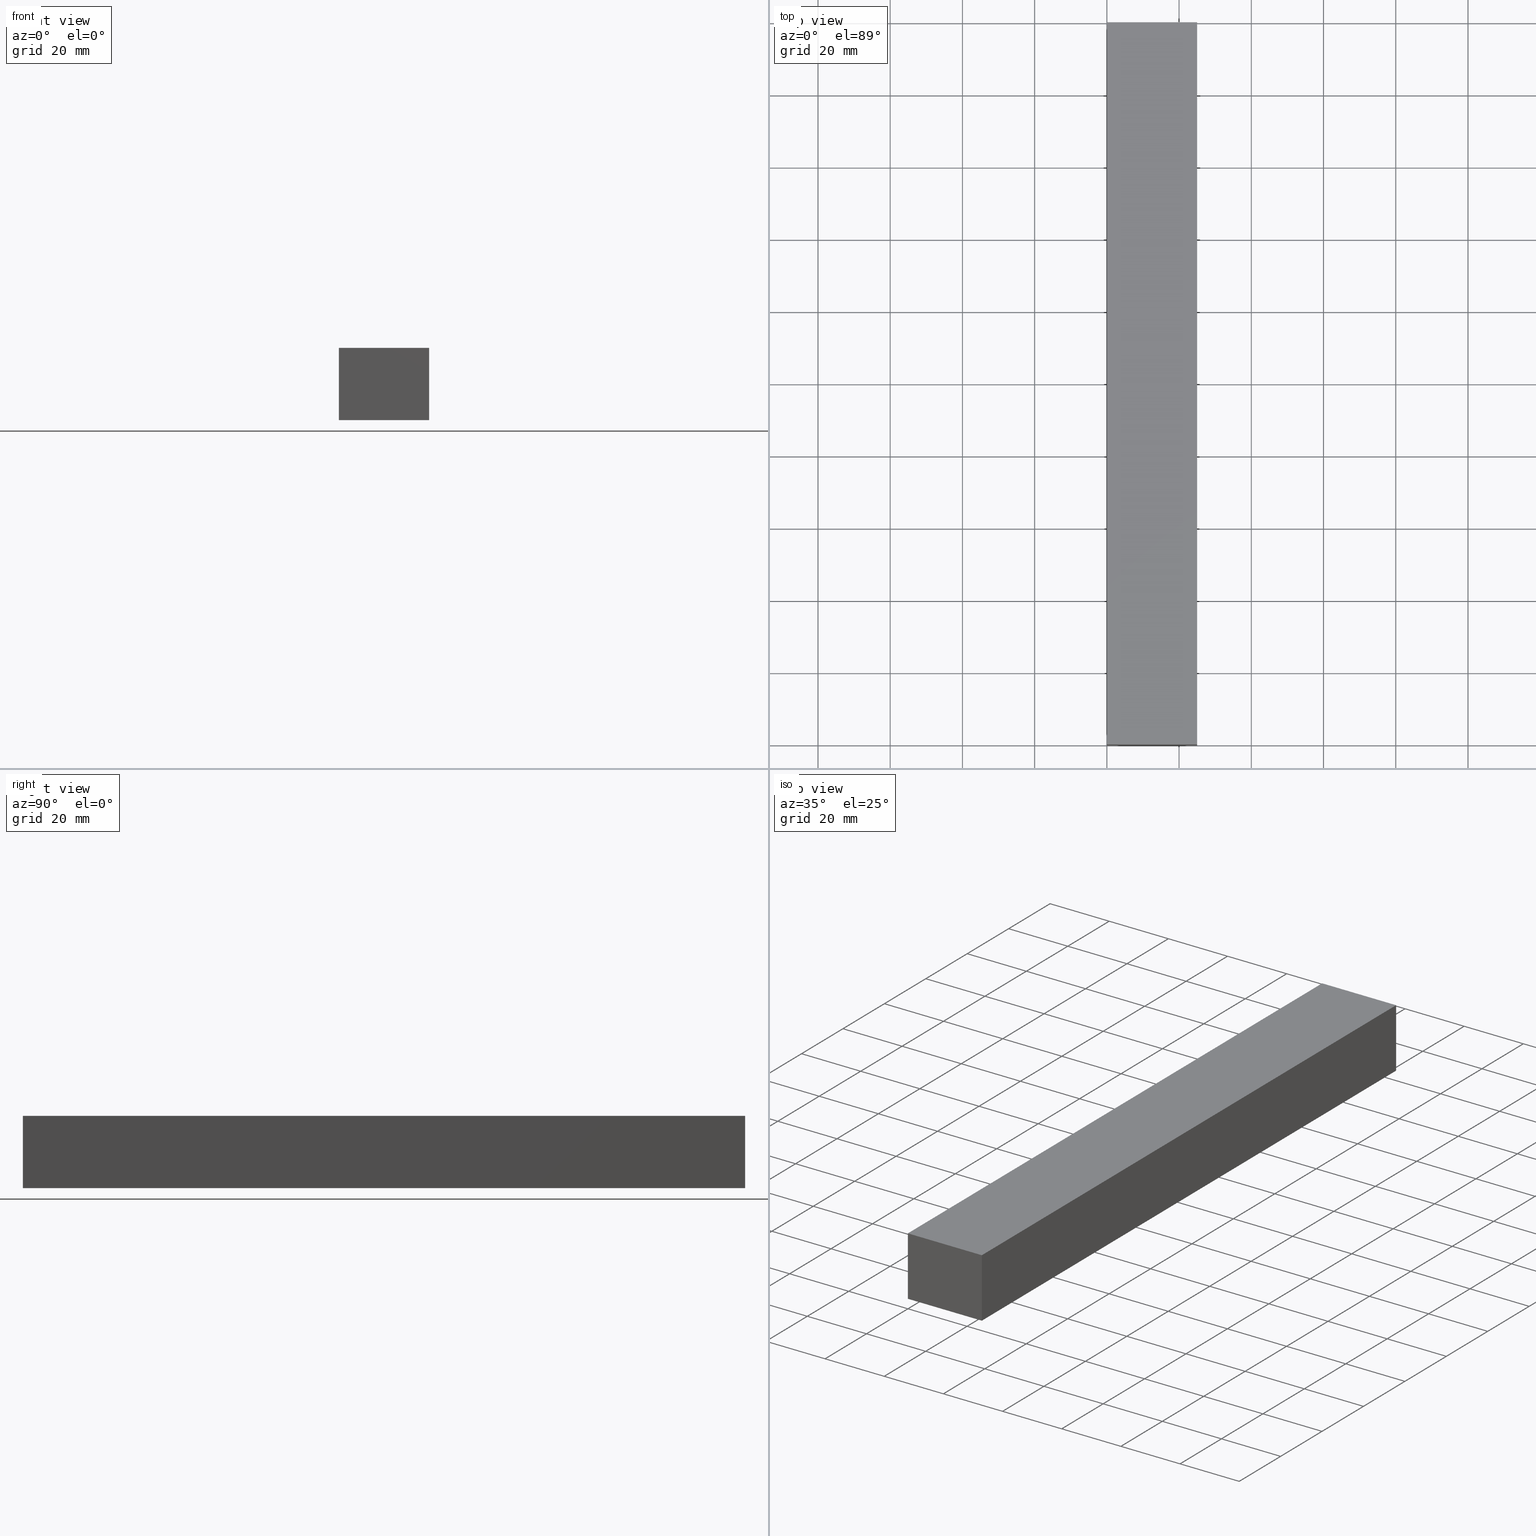
[diagram: canonical four-view strip — front | top / right | iso, engineering-drawing reading convention]
A machine part, canonical four-view strip (front | top / right | iso — engineering-drawing reading convention). The complete STEP part file that produces these views, byte-faithful:
ISO-10303-21;
HEADER;
/****************************************************************
 * Generated by software with PDE/Lib inside                    *
 * PDElib Version 4.4.1-0003, patched  Thursday August 19 11:58 *
 * International Technegroup Inc. (www.iti-oh.com)              *
 ****************************************************************/
FILE_DESCRIPTION((''),'2;1');
FILE_NAME('','2005-12-14T17:00:50',(''),(''),'','CADfix','');
FILE_SCHEMA(('AUTOMOTIVE_DESIGN'));
ENDSEC;
DATA;
#5=APPLICATION_CONTEXT('automotive design');
#6=APPLICATION_PROTOCOL_DEFINITION('Draft International Standard','automotive_design',1998,#5);
#7=PRODUCT_CONTEXT('None',#5,'mechanical');
#8=PRODUCT('rubber foam','','None',(#7));
#9=PRODUCT_RELATED_PRODUCT_CATEGORY('part','description',(#8));
#10=PRODUCT_DEFINITION_FORMATION('None','None',#8);
#11=PRODUCT_DEFINITION_CONTEXT('part definition',#5,'design');
#12=PRODUCT_DEFINITION('None','None',#10,#11);
#18=(NAMED_UNIT(*)PLANE_ANGLE_UNIT()SI_UNIT($,.RADIAN.));
#19=DIMENSIONAL_EXPONENTS(0.0,0.0,0.0,0.0,0.0,0.0,0.0);
#20=PLANE_ANGLE_MEASURE_WITH_UNIT(PLANE_ANGLE_MEASURE(0.017453292500000),#18);
#24=(CONVERSION_BASED_UNIT('DEGREE',#20)NAMED_UNIT(#19)PLANE_ANGLE_UNIT());
#28=(NAMED_UNIT(*)SI_UNIT($,.STERADIAN.)SOLID_ANGLE_UNIT());
#32=(LENGTH_UNIT()NAMED_UNIT(*)SI_UNIT(.MILLI.,.METRE.));
#34=UNCERTAINTY_MEASURE_WITH_UNIT(LENGTH_MEASURE(0.001000000000000),#32,'DISTANCE_ACCURACY_VALUE','');
#36=(GEOMETRIC_REPRESENTATION_CONTEXT(3)GLOBAL_UNCERTAINTY_ASSIGNED_CONTEXT((#34))GLOBAL_UNIT_ASSIGNED_CONTEXT((#24,#28,#32))REPRESENTATION_CONTEXT('None','None'));
#37=AXIS2_PLACEMENT_3D('',#38,#39,#40);
#38=CARTESIAN_POINT('',(0.0,0.0,0.0));
#39=DIRECTION('',(0.0,0.0,1.0));
#40=DIRECTION('',(1.0,0.0,0.0));
#41=ADVANCED_BREP_SHAPE_REPRESENTATION('',(#37,#181),#36);
#42=PRODUCT_DEFINITION_SHAPE('','',#12);
#43=SHAPE_DEFINITION_REPRESENTATION(#42,#41);
#44=CARTESIAN_POINT('',(-1.248749951545149,0.0,20.998999961236120));
#45=CARTESIAN_POINT('',(26.248750622097401,0.0,20.998999961236120));
#46=CARTESIAN_POINT('',(-1.248749951545149,0.0,-0.999000497677922));
#47=CARTESIAN_POINT('',(26.248750622097401,0.0,-0.999000497677922));
#48=B_SPLINE_SURFACE_WITH_KNOTS('',1,1,((#44,#46),(#45,#47)),.UNSPECIFIED.,.F.,.F.,.U.,(2,2),(2,2),(0.0,27.497500573642551),(0.0,21.998000458914039),.UNSPECIFIED.);
#49=CARTESIAN_POINT('',(0.0,0.0,0.0));
#50=VERTEX_POINT('',#49);
#51=CARTESIAN_POINT('',(25.0,0.0,0.0));
#52=VERTEX_POINT('',#51);
#53=CARTESIAN_POINT('',(0.0,0.0,0.0));
#54=CARTESIAN_POINT('',(25.0,0.0,0.0));
#55=QUASI_UNIFORM_CURVE('',1,(#53,#54),.UNSPECIFIED.,.F.,.U.);
#56=EDGE_CURVE('',#50,#52,#55,.T.);
#57=ORIENTED_EDGE('',*,*,#56,.T.);
#58=CARTESIAN_POINT('',(25.0,0.0,20.0));
#59=VERTEX_POINT('',#58);
#60=CARTESIAN_POINT('',(25.0,0.0,0.0));
#61=CARTESIAN_POINT('',(25.0,0.0,20.0));
#62=QUASI_UNIFORM_CURVE('',1,(#60,#61),.UNSPECIFIED.,.F.,.U.);
#63=EDGE_CURVE('',#52,#59,#62,.T.);
#64=ORIENTED_EDGE('',*,*,#63,.T.);
#65=CARTESIAN_POINT('',(0.0,0.0,20.0));
#66=VERTEX_POINT('',#65);
#67=CARTESIAN_POINT('',(25.0,0.0,20.0));
#68=CARTESIAN_POINT('',(0.0,0.0,20.0));
#69=QUASI_UNIFORM_CURVE('',1,(#67,#68),.UNSPECIFIED.,.F.,.U.);
#70=EDGE_CURVE('',#59,#66,#69,.T.);
#71=ORIENTED_EDGE('',*,*,#70,.T.);
#72=CARTESIAN_POINT('',(0.0,0.0,20.0));
#73=CARTESIAN_POINT('',(0.0,0.0,0.0));
#74=QUASI_UNIFORM_CURVE('',1,(#72,#73),.UNSPECIFIED.,.F.,.U.);
#75=EDGE_CURVE('',#66,#50,#74,.T.);
#76=ORIENTED_EDGE('',*,*,#75,.T.);
#77=EDGE_LOOP('',(#57,#64,#71,#76));
#78=FACE_OUTER_BOUND('',#77,.T.);
#79=ADVANCED_FACE('',(#78),#48,.F.);
#80=CARTESIAN_POINT('',(-1.248749951545149,200.0,20.998999961236120));
#81=CARTESIAN_POINT('',(26.248750622097401,200.0,20.998999961236120));
#82=CARTESIAN_POINT('',(-1.248749951545149,200.0,-0.999000497677922));
#83=CARTESIAN_POINT('',(26.248750622097401,200.0,-0.999000497677922));
#84=B_SPLINE_SURFACE_WITH_KNOTS('',1,1,((#80,#82),(#81,#83)),.UNSPECIFIED.,.F.,.F.,.U.,(2,2),(2,2),(0.0,27.497500573642551),(0.0,21.998000458914039),.UNSPECIFIED.);
#85=CARTESIAN_POINT('',(0.0,200.0,0.0));
#86=VERTEX_POINT('',#85);
#87=CARTESIAN_POINT('',(25.0,200.0,0.0));
#88=VERTEX_POINT('',#87);
#89=CARTESIAN_POINT('',(0.0,200.0,0.0));
#90=CARTESIAN_POINT('',(25.0,200.0,0.0));
#91=QUASI_UNIFORM_CURVE('',1,(#89,#90),.UNSPECIFIED.,.F.,.U.);
#92=EDGE_CURVE('',#86,#88,#91,.T.);
#93=ORIENTED_EDGE('',*,*,#92,.F.);
#94=CARTESIAN_POINT('',(0.0,200.0,20.0));
#95=VERTEX_POINT('',#94);
#96=CARTESIAN_POINT('',(0.0,200.0,20.0));
#97=CARTESIAN_POINT('',(0.0,200.0,0.0));
#98=QUASI_UNIFORM_CURVE('',1,(#96,#97),.UNSPECIFIED.,.F.,.U.);
#99=EDGE_CURVE('',#95,#86,#98,.T.);
#100=ORIENTED_EDGE('',*,*,#99,.F.);
#101=CARTESIAN_POINT('',(25.0,200.0,20.0));
#102=VERTEX_POINT('',#101);
#103=CARTESIAN_POINT('',(25.0,200.0,20.0));
#104=CARTESIAN_POINT('',(0.0,200.0,20.0));
#105=QUASI_UNIFORM_CURVE('',1,(#103,#104),.UNSPECIFIED.,.F.,.U.);
#106=EDGE_CURVE('',#102,#95,#105,.T.);
#107=ORIENTED_EDGE('',*,*,#106,.F.);
#108=CARTESIAN_POINT('',(25.0,200.0,0.0));
#109=CARTESIAN_POINT('',(25.0,200.0,20.0));
#110=QUASI_UNIFORM_CURVE('',1,(#108,#109),.UNSPECIFIED.,.F.,.U.);
#111=EDGE_CURVE('',#88,#102,#110,.T.);
#112=ORIENTED_EDGE('',*,*,#111,.F.);
#113=EDGE_LOOP('',(#93,#100,#107,#112));
#114=FACE_OUTER_BOUND('',#113,.T.);
#115=ADVANCED_FACE('',(#114),#84,.T.);
#116=CARTESIAN_POINT('',(0.0,-9.989999612361194,-0.998999961236120));
#117=CARTESIAN_POINT('',(0.0,-9.989999612361194,20.999000497677919));
#118=CARTESIAN_POINT('',(0.0,209.990004976779200,-0.998999961236120));
#119=CARTESIAN_POINT('',(0.0,209.990004976779200,20.999000497677919));
#120=B_SPLINE_SURFACE_WITH_KNOTS('',1,1,((#116,#118),(#117,#119)),.UNSPECIFIED.,.F.,.F.,.U.,(2,2),(2,2),(0.0,21.998000458914039),(0.0,219.980004589140410),.UNSPECIFIED.);
#121=ORIENTED_EDGE('',*,*,#75,.F.);
#122=CARTESIAN_POINT('',(0.0,200.0,20.0));
#123=CARTESIAN_POINT('',(0.0,0.0,20.0));
#124=QUASI_UNIFORM_CURVE('',1,(#122,#123),.UNSPECIFIED.,.F.,.U.);
#125=EDGE_CURVE('',#95,#66,#124,.T.);
#126=ORIENTED_EDGE('',*,*,#125,.F.);
#127=ORIENTED_EDGE('',*,*,#99,.T.);
#128=CARTESIAN_POINT('',(0.0,200.0,0.0));
#129=CARTESIAN_POINT('',(0.0,0.0,0.0));
#130=QUASI_UNIFORM_CURVE('',1,(#128,#129),.UNSPECIFIED.,.F.,.U.);
#131=EDGE_CURVE('',#86,#50,#130,.T.);
#132=ORIENTED_EDGE('',*,*,#131,.T.);
#133=EDGE_LOOP('',(#121,#126,#127,#132));
#134=FACE_OUTER_BOUND('',#133,.T.);
#135=ADVANCED_FACE('',(#134),#120,.T.);
#136=CARTESIAN_POINT('',(-1.248749951545149,-9.989999612361194,20.0));
#137=CARTESIAN_POINT('',(26.248750622097401,-9.989999612361194,20.0));
#138=CARTESIAN_POINT('',(-1.248749951545149,209.990004976779200,20.0));
#139=CARTESIAN_POINT('',(26.248750622097401,209.990004976779200,20.0));
#140=B_SPLINE_SURFACE_WITH_KNOTS('',1,1,((#136,#138),(#137,#139)),.UNSPECIFIED.,.F.,.F.,.U.,(2,2),(2,2),(0.0,27.497500573642551),(0.0,219.980004589140410),.UNSPECIFIED.);
#141=ORIENTED_EDGE('',*,*,#70,.F.);
#142=CARTESIAN_POINT('',(25.0,200.0,20.0));
#143=CARTESIAN_POINT('',(25.0,0.0,20.0));
#144=QUASI_UNIFORM_CURVE('',1,(#142,#143),.UNSPECIFIED.,.F.,.U.);
#145=EDGE_CURVE('',#102,#59,#144,.T.);
#146=ORIENTED_EDGE('',*,*,#145,.F.);
#147=ORIENTED_EDGE('',*,*,#106,.T.);
#148=ORIENTED_EDGE('',*,*,#125,.T.);
#149=EDGE_LOOP('',(#141,#146,#147,#148));
#150=FACE_OUTER_BOUND('',#149,.T.);
#151=ADVANCED_FACE('',(#150),#140,.T.);
#152=CARTESIAN_POINT('',(25.0,-9.989999612361171,20.998999961236120));
#153=CARTESIAN_POINT('',(25.0,-9.989999612361171,-0.999000497677920));
#154=CARTESIAN_POINT('',(25.0,209.990004976779200,20.998999961236120));
#155=CARTESIAN_POINT('',(25.0,209.990004976779200,-0.999000497677920));
#156=B_SPLINE_SURFACE_WITH_KNOTS('',1,1,((#152,#154),(#153,#155)),.UNSPECIFIED.,.F.,.F.,.U.,(2,2),(2,2),(0.0,21.998000458914039),(0.0,219.980004589140410),.UNSPECIFIED.);
#157=ORIENTED_EDGE('',*,*,#63,.F.);
#158=CARTESIAN_POINT('',(25.0,200.0,0.0));
#159=CARTESIAN_POINT('',(25.0,0.0,0.0));
#160=QUASI_UNIFORM_CURVE('',1,(#158,#159),.UNSPECIFIED.,.F.,.U.);
#161=EDGE_CURVE('',#88,#52,#160,.T.);
#162=ORIENTED_EDGE('',*,*,#161,.F.);
#163=ORIENTED_EDGE('',*,*,#111,.T.);
#164=ORIENTED_EDGE('',*,*,#145,.T.);
#165=EDGE_LOOP('',(#157,#162,#163,#164));
#166=FACE_OUTER_BOUND('',#165,.T.);
#167=ADVANCED_FACE('',(#166),#156,.T.);
#168=CARTESIAN_POINT('',(26.248749951545150,-9.989999612361171,0.0));
#169=CARTESIAN_POINT('',(-1.248750622097401,-9.989999612361171,0.0));
#170=CARTESIAN_POINT('',(26.248749951545150,209.990004976779200,0.0));
#171=CARTESIAN_POINT('',(-1.248750622097401,209.990004976779200,0.0));
#172=B_SPLINE_SURFACE_WITH_KNOTS('',1,1,((#168,#170),(#169,#171)),.UNSPECIFIED.,.F.,.F.,.U.,(2,2),(2,2),(0.0,27.497500573642551),(0.0,219.980004589140410),.UNSPECIFIED.);
#173=ORIENTED_EDGE('',*,*,#56,.F.);
#174=ORIENTED_EDGE('',*,*,#131,.F.);
#175=ORIENTED_EDGE('',*,*,#92,.T.);
#176=ORIENTED_EDGE('',*,*,#161,.T.);
#177=EDGE_LOOP('',(#173,#174,#175,#176));
#178=FACE_OUTER_BOUND('',#177,.T.);
#179=ADVANCED_FACE('',(#178),#172,.T.);
#180=CLOSED_SHELL('',(#79,#115,#135,#151,#167,#179));
#181=MANIFOLD_SOLID_BREP('rubber foam',#180);
#187=(NAMED_UNIT(*)PLANE_ANGLE_UNIT()SI_UNIT($,.RADIAN.));
#188=DIMENSIONAL_EXPONENTS(0.0,0.0,0.0,0.0,0.0,0.0,0.0);
#189=PLANE_ANGLE_MEASURE_WITH_UNIT(PLANE_ANGLE_MEASURE(0.017453292500000),#187);
#193=(CONVERSION_BASED_UNIT('DEGREE',#189)NAMED_UNIT(#188)PLANE_ANGLE_UNIT());
#197=(NAMED_UNIT(*)SI_UNIT($,.STERADIAN.)SOLID_ANGLE_UNIT());
#201=(LENGTH_UNIT()NAMED_UNIT(*)SI_UNIT(.MILLI.,.METRE.));
#203=UNCERTAINTY_MEASURE_WITH_UNIT(LENGTH_MEASURE(0.001000000000000),#201,'DISTANCE_ACCURACY_VALUE','');
#205=(GEOMETRIC_REPRESENTATION_CONTEXT(3)GLOBAL_UNCERTAINTY_ASSIGNED_CONTEXT((#203))GLOBAL_UNIT_ASSIGNED_CONTEXT((#193,#197,#201))REPRESENTATION_CONTEXT('','3D'));
ENDSEC;
END-ISO-10303-21;
